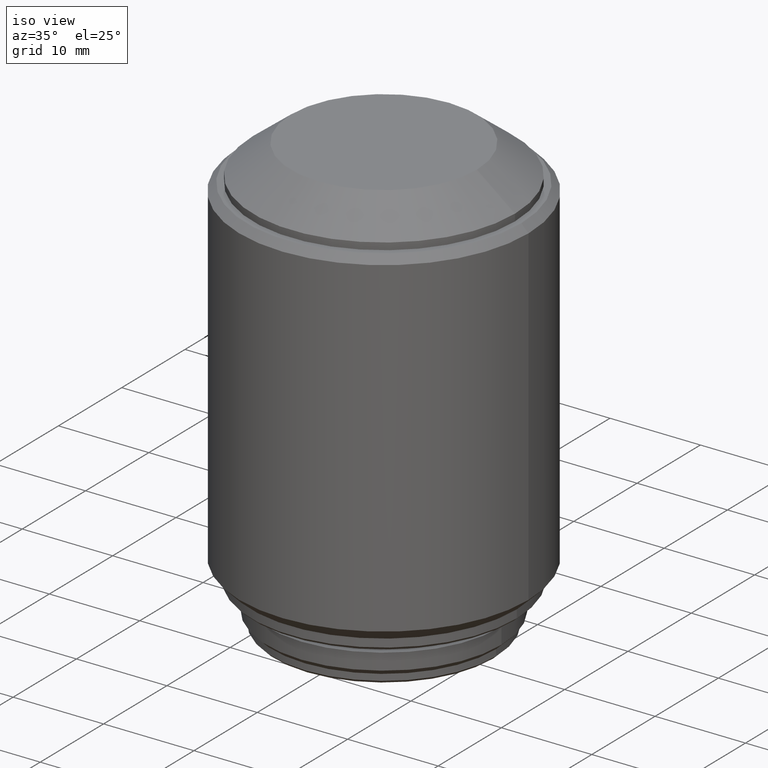
[diagram: clean part render]
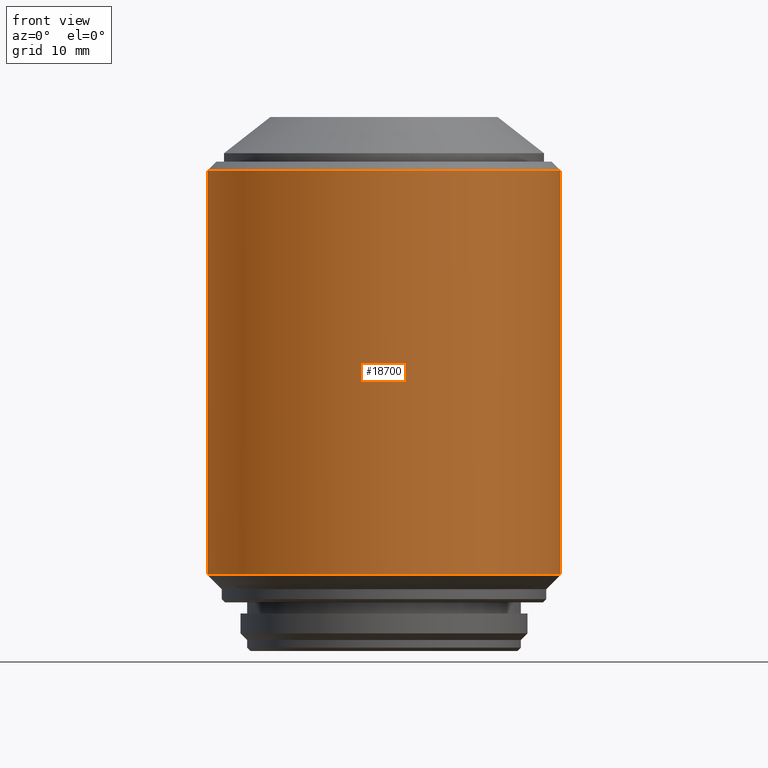
[diagram: tour spotlight — one face highlighted and labeled with its STEP entity id]
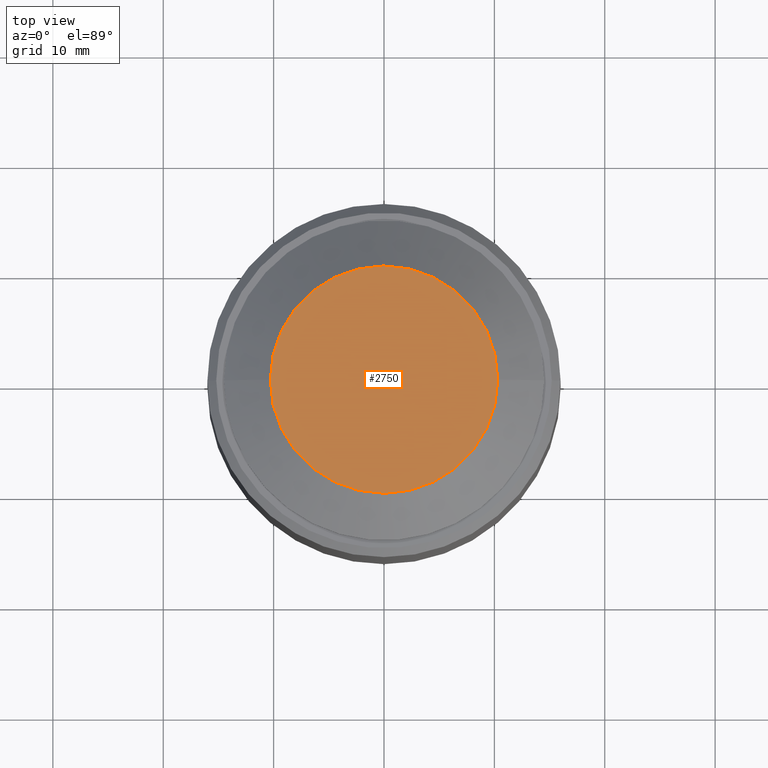
[diagram: tour spotlight — one face highlighted and labeled with its STEP entity id]
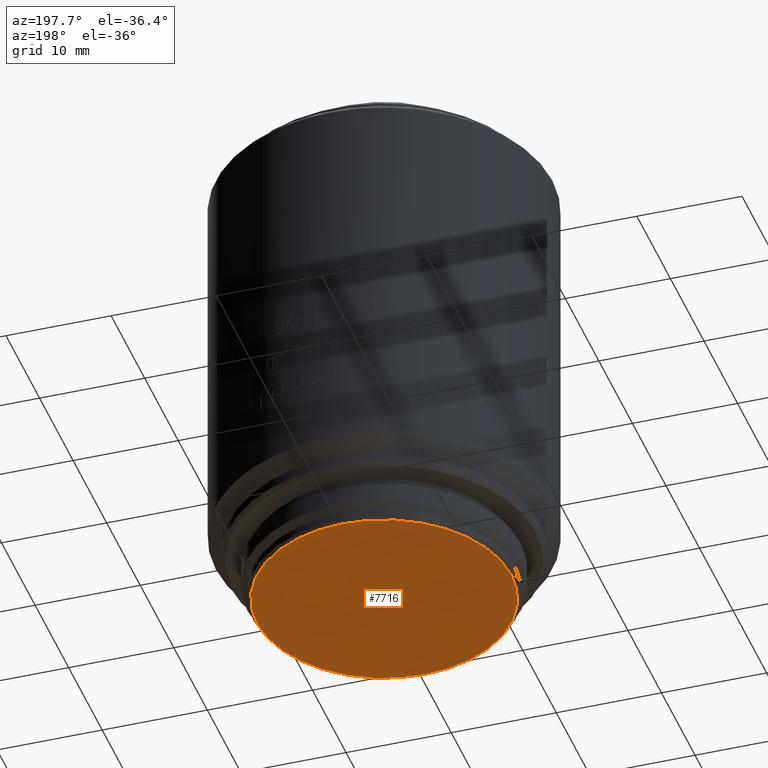
[diagram: tour spotlight — one face highlighted and labeled with its STEP entity id]
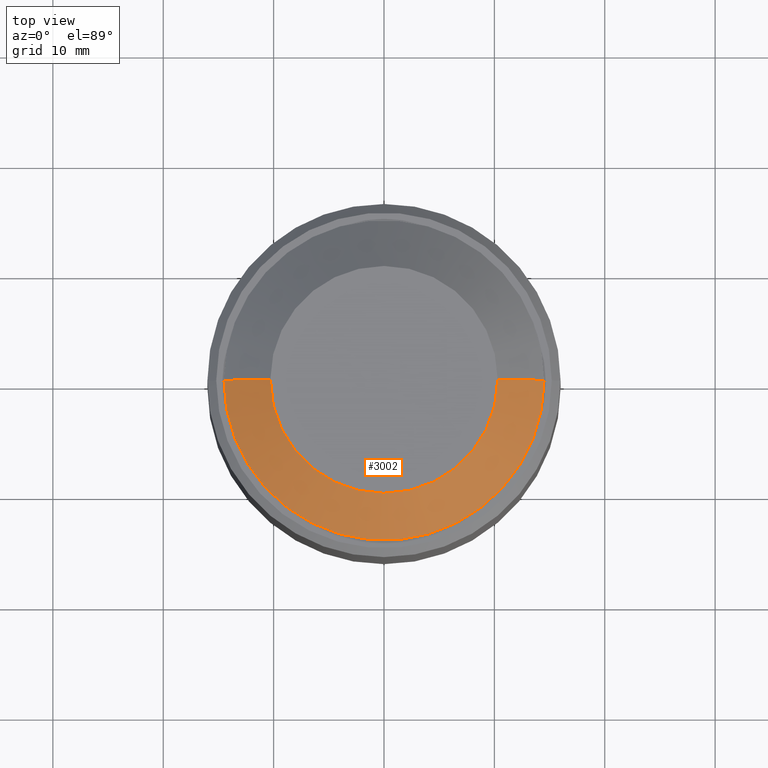
[diagram: tour spotlight — one face highlighted and labeled with its STEP entity id]
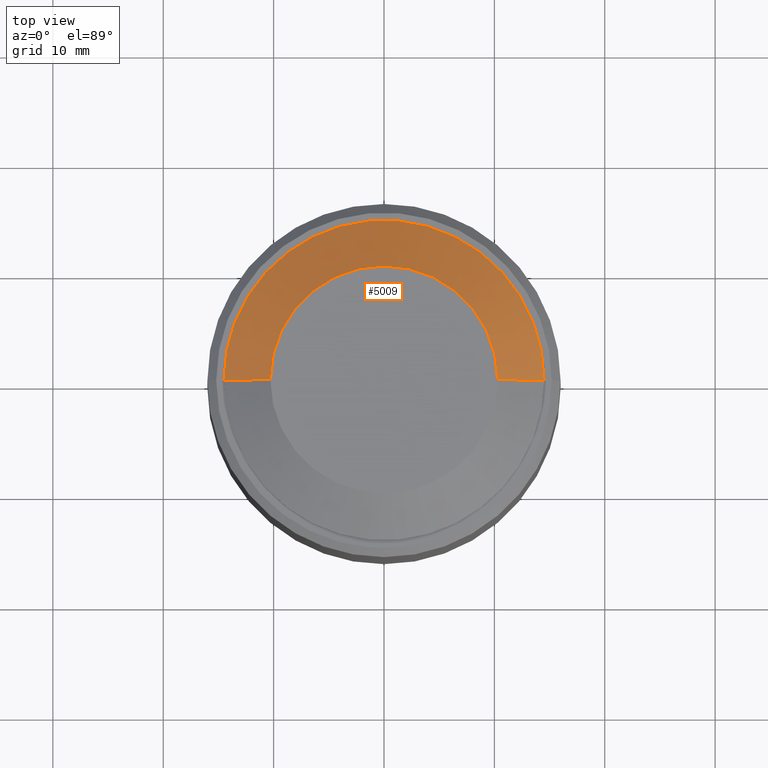
[diagram: tour spotlight — one face highlighted and labeled with its STEP entity id]
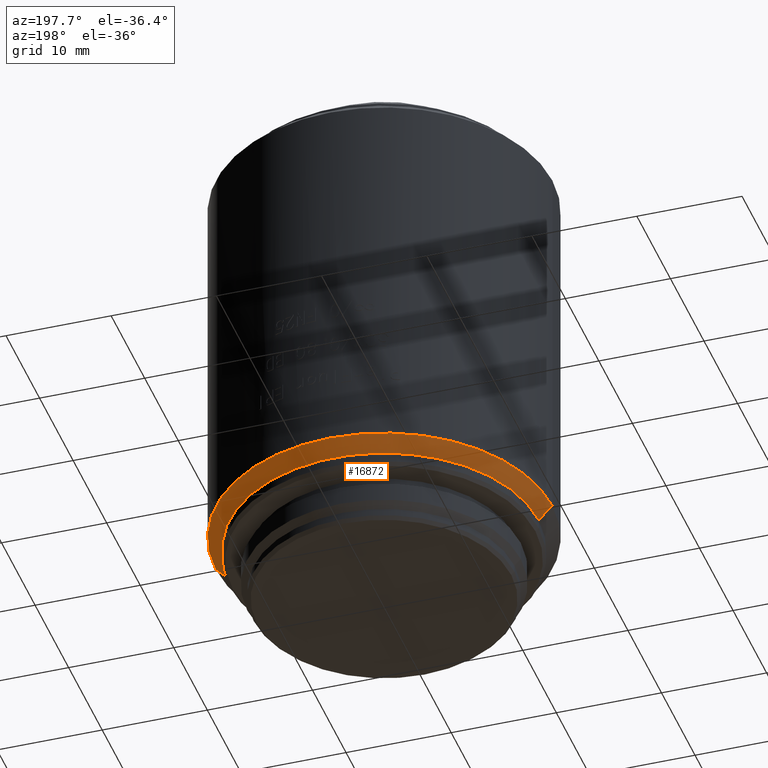
[diagram: tour spotlight — one face highlighted and labeled with its STEP entity id]
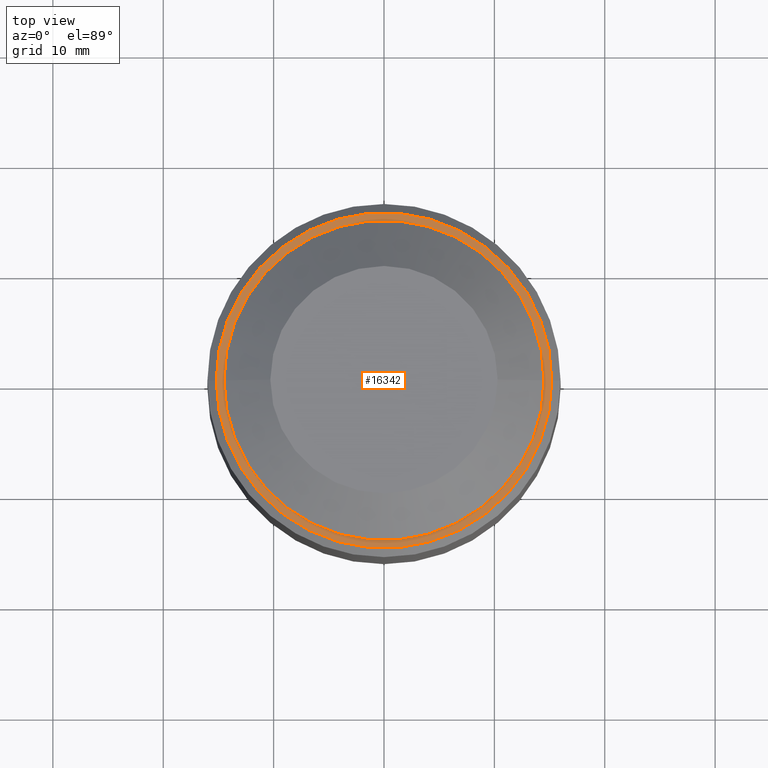
[diagram: tour spotlight — one face highlighted and labeled with its STEP entity id]
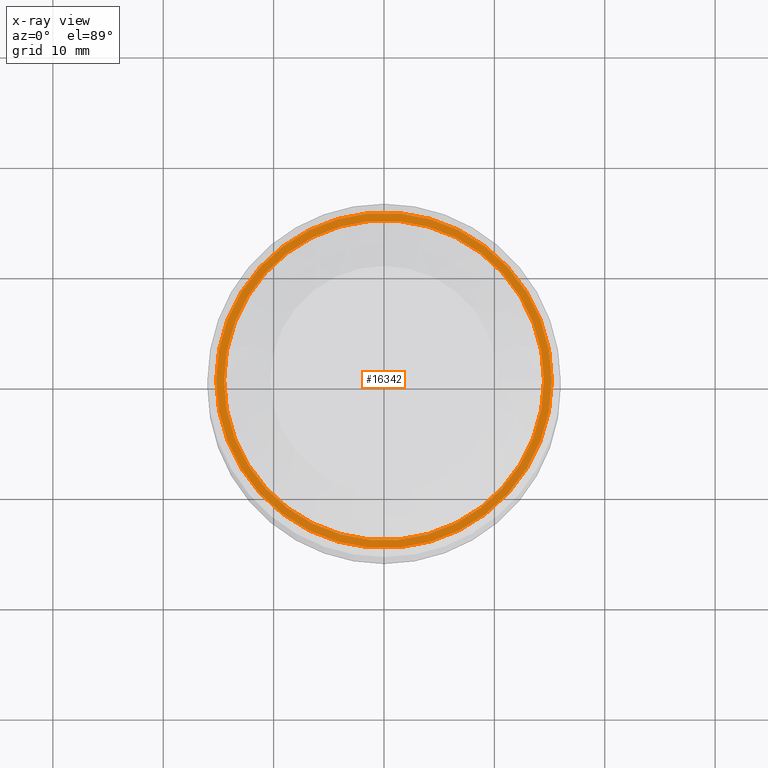
[diagram: x-ray of the same camera — body ghosted, this tour face saturated]
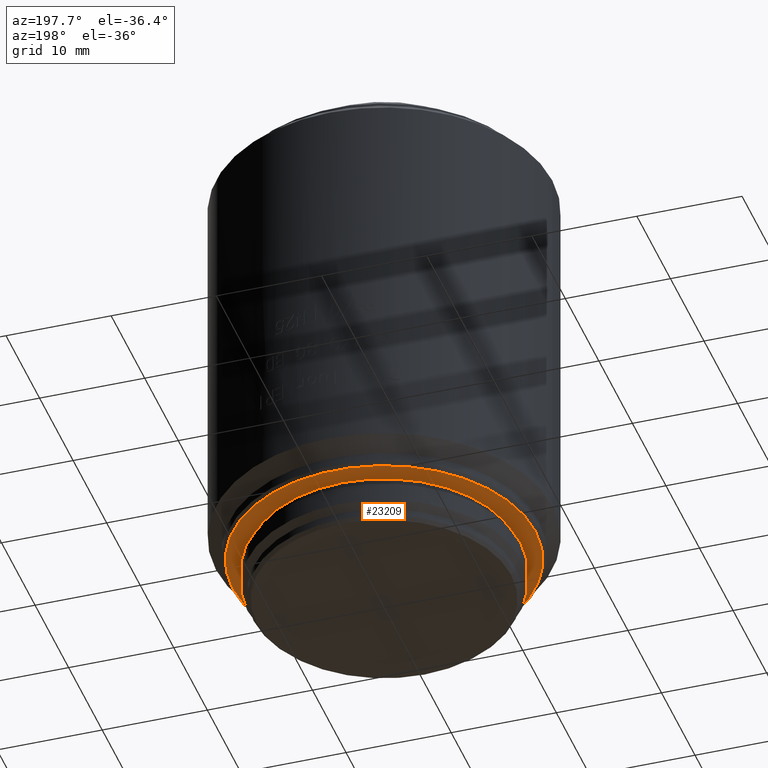
[diagram: tour spotlight — one face highlighted and labeled with its STEP entity id]
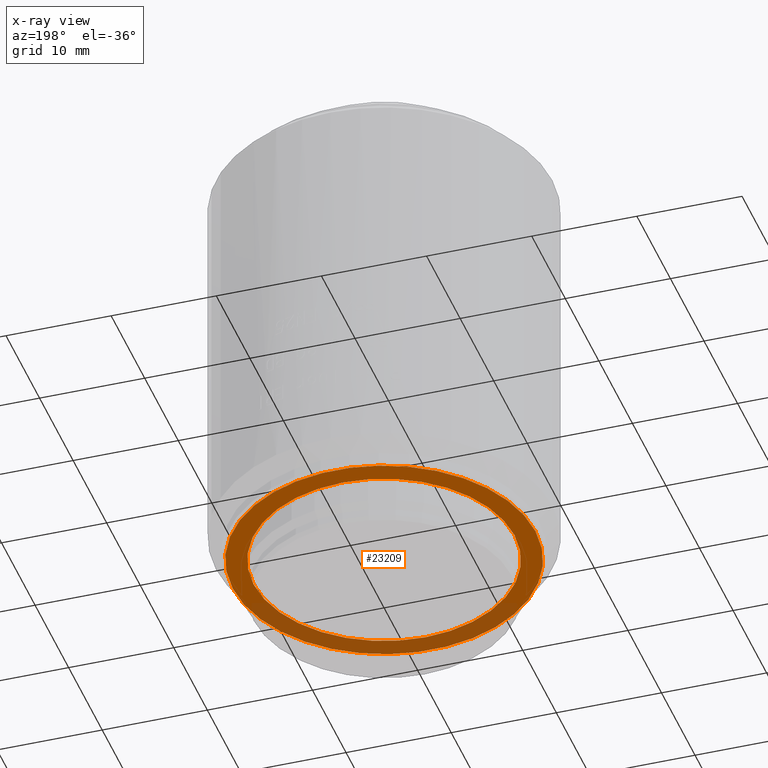
[diagram: x-ray of the same camera — body ghosted, this tour face saturated]
A machine part: a face-by-face anatomy tour. The part has 338 B-rep faces; the first image is the clean iso view, then the 8 largest visible faces are spotlighted one at a time (largest first), each with its STEP entity span.

Face 1 — front view, entity #18700. In plain terms, the highlighted cylindrical surface (partial cylindrical patch) has radius 16 mm, axis along (0, 0, -1).
Definition (entity closure, byte-faithful):
#1824 = DIRECTION ( 'NONE',  ( -1.000000000000000000, 0.000000000000000000, 0.000000000000000000 ) ) ;
#3252 = ORIENTED_EDGE ( 'NONE', *, *, #16903, .T. ) ;
#3361 = LINE ( 'NONE', #27268, #8915 ) ;
#3672 = CARTESIAN_POINT ( 'NONE',  ( 15.99999999999998934, 0.000000000000000000, 6.899999999999999467 ) ) ;
#5108 = CARTESIAN_POINT ( 'NONE',  ( -15.99999999999998579, 0.000000000000000000, 43.53300000000000125 ) ) ;
#5195 = EDGE_CURVE ( 'NONE', #19656, #13818, #11776, .T. ) ;
#5791 = CIRCLE ( 'NONE', #21033, 16.00000000000000000 ) ;
#6987 = DIRECTION ( 'NONE',  ( -1.000000000000000000, 0.000000000000000000, 0.000000000000000000 ) ) ;
#7368 = VERTEX_POINT ( 'NONE', #3672 ) ;
#7916 = EDGE_CURVE ( 'NONE', #13818, #27066, #15582, .T. ) ;
#8915 = VECTOR ( 'NONE', #27120, 1000.000000000000000 ) ;
#11164 = EDGE_LOOP ( 'NONE', ( #22259, #14129, #21833, #3252 ) ) ;
#11776 = CIRCLE ( 'NONE', #26602, 16.00000000000000000 ) ;
#12979 = DIRECTION ( 'NONE',  ( 1.000000000000000000, 0.000000000000000000, 0.000000000000000000 ) ) ;
#13111 = CARTESIAN_POINT ( 'NONE',  ( 0.000000000000000000, 0.000000000000000000, 43.53300000000000125 ) ) ;
#13815 = CARTESIAN_POINT ( 'NONE',  ( 15.99999999999998579, 1.959434878635763554E-15, 43.53300000000000125 ) ) ;
#13818 = VERTEX_POINT ( 'NONE', #5108 ) ;
#14129 = ORIENTED_EDGE ( 'NONE', *, *, #5195, .T. ) ;
#14953 = DIRECTION ( 'NONE',  ( 0.000000000000000000, 0.000000000000000000, -1.000000000000000000 ) ) ;
#15522 = CARTESIAN_POINT ( 'NONE',  ( 0.000000000000000000, 0.000000000000000000, 6.899999999999999467 ) ) ;
#15582 = LINE ( 'NONE', #24431, #26391 ) ;
#16255 = CARTESIAN_POINT ( 'NONE',  ( -15.99999999999998934, 1.959434878635763948E-15, 6.899999999999999467 ) ) ;
#16564 = AXIS2_PLACEMENT_3D ( 'NONE', #18197, #20445, #6987 ) ;
#16903 = EDGE_CURVE ( 'NONE', #27066, #7368, #5791, .T. ) ;
#17793 = CYLINDRICAL_SURFACE ( 'NONE', #16564, 16.00000000000000000 ) ;
#17841 = EDGE_CURVE ( 'NONE', #19656, #7368, #3361, .T. ) ;
#18197 = CARTESIAN_POINT ( 'NONE',  ( 0.000000000000000000, 0.000000000000000000, 48.37899999999999778 ) ) ;
#18700 = ADVANCED_FACE ( 'NONE', ( #26247 ), #17793, .T. ) ;
#19656 = VERTEX_POINT ( 'NONE', #13815 ) ;
#20445 = DIRECTION ( 'NONE',  ( 0.000000000000000000, 0.000000000000000000, -1.000000000000000000 ) ) ;
#21033 = AXIS2_PLACEMENT_3D ( 'NONE', #15522, #27823, #1824 ) ;
#21833 = ORIENTED_EDGE ( 'NONE', *, *, #7916, .T. ) ;
#22259 = ORIENTED_EDGE ( 'NONE', *, *, #17841, .F. ) ;
#24158 = DIRECTION ( 'NONE',  ( 0.000000000000000000, 0.000000000000000000, -1.000000000000000000 ) ) ;
#24431 = CARTESIAN_POINT ( 'NONE',  ( -16.00000000000000000, 0.000000000000000000, 48.37899999999999778 ) ) ;
#26247 = FACE_OUTER_BOUND ( 'NONE', #11164, .T. ) ;
#26391 = VECTOR ( 'NONE', #24158, 1000.000000000000000 ) ;
#26602 = AXIS2_PLACEMENT_3D ( 'NONE', #13111, #14953, #12979 ) ;
#27066 = VERTEX_POINT ( 'NONE', #16255 ) ;
#27120 = DIRECTION ( 'NONE',  ( 0.000000000000000000, 0.000000000000000000, -1.000000000000000000 ) ) ;
#27268 = CARTESIAN_POINT ( 'NONE',  ( 16.00000000000000000, 1.959434878635765131E-15, 48.37899999999999778 ) ) ;
#27823 = DIRECTION ( 'NONE',  ( 0.000000000000000000, 0.000000000000000000, 1.000000000000000000 ) ) ;

Face 2 — top view, entity #2750. In plain terms, the highlighted planar face has unit normal (0, 0, 1).
Definition (entity closure, byte-faithful):
#2185 = AXIS2_PLACEMENT_3D ( 'NONE', #20093, #22469, #20639 ) ;
#2637 = VERTEX_POINT ( 'NONE', #21242 ) ;
#2750 = ADVANCED_FACE ( 'NONE', ( #2964 ), #24179, .T. ) ;
#2964 = FACE_OUTER_BOUND ( 'NONE', #24156, .T. ) ;
#3698 = AXIS2_PLACEMENT_3D ( 'NONE', #23453, #11314, #4222 ) ;
#4222 = DIRECTION ( 'NONE',  ( 1.000000000000000000, 0.000000000000000000, 0.000000000000000000 ) ) ;
#8330 = CARTESIAN_POINT ( 'NONE',  ( 0.000000000000000000, 0.000000000000000000, 48.37899999999999778 ) ) ;
#10864 = CIRCLE ( 'NONE', #3698, 10.30000000000000071 ) ;
#11314 = DIRECTION ( 'NONE',  ( 0.000000000000000000, 0.000000000000000000, 1.000000000000000000 ) ) ;
#11732 = ORIENTED_EDGE ( 'NONE', *, *, #23756, .T. ) ;
#13396 = EDGE_CURVE ( 'NONE', #2637, #15045, #10864, .T. ) ;
#13582 = AXIS2_PLACEMENT_3D ( 'NONE', #8330, #21511, #16892 ) ;
#15045 = VERTEX_POINT ( 'NONE', #16010 ) ;
#16010 = CARTESIAN_POINT ( 'NONE',  ( 10.30000000000000071, 1.518562030942717967E-15, 48.37899999999999778 ) ) ;
#16685 = ORIENTED_EDGE ( 'NONE', *, *, #13396, .T. ) ;
#16892 = DIRECTION ( 'NONE',  ( 1.000000000000000000, 0.000000000000000000, 0.000000000000000000 ) ) ;
#20093 = CARTESIAN_POINT ( 'NONE',  ( 0.000000000000000000, 0.000000000000000000, 48.37899999999999778 ) ) ;
#20639 = DIRECTION ( 'NONE',  ( 1.000000000000000000, 0.000000000000000000, 0.000000000000000000 ) ) ;
#21242 = CARTESIAN_POINT ( 'NONE',  ( -10.30000000000000071, 0.000000000000000000, 48.37899999999999778 ) ) ;
#21511 = DIRECTION ( 'NONE',  ( 0.000000000000000000, 0.000000000000000000, 1.000000000000000000 ) ) ;
#22469 = DIRECTION ( 'NONE',  ( 0.000000000000000000, 0.000000000000000000, 1.000000000000000000 ) ) ;
#23453 = CARTESIAN_POINT ( 'NONE',  ( 0.000000000000000000, 0.000000000000000000, 48.37899999999999778 ) ) ;
#23460 = CIRCLE ( 'NONE', #13582, 10.30000000000000071 ) ;
#23756 = EDGE_CURVE ( 'NONE', #15045, #2637, #23460, .T. ) ;
#24156 = EDGE_LOOP ( 'NONE', ( #16685, #11732 ) ) ;
#24179 = PLANE ( 'NONE',  #2185 ) ;

Face 3 — auxiliary view, entity #7716. In plain terms, the highlighted planar face has unit normal (0, 0, 1).
Definition (entity closure, byte-faithful):
#411 = FACE_OUTER_BOUND ( 'NONE', #6683, .T. ) ;
#822 = CIRCLE ( 'NONE', #5769, 12.09999999999999964 ) ;
#998 = ORIENTED_EDGE ( 'NONE', *, *, #3126, .T. ) ;
#1782 = DIRECTION ( 'NONE',  ( 1.000000000000000000, 0.000000000000000000, 0.000000000000000000 ) ) ;
#1785 = VERTEX_POINT ( 'NONE', #27340 ) ;
#3126 = EDGE_CURVE ( 'NONE', #6643, #1785, #822, .T. ) ;
#5769 = AXIS2_PLACEMENT_3D ( 'NONE', #25837, #23702, #11051 ) ;
#6643 = VERTEX_POINT ( 'NONE', #27460 ) ;
#6683 = EDGE_LOOP ( 'NONE', ( #998, #21627 ) ) ;
#7716 = ADVANCED_FACE ( 'NONE', ( #411 ), #8849, .F. ) ;
#8103 = DIRECTION ( 'NONE',  ( 0.000000000000000000, 0.000000000000000000, -1.000000000000000000 ) ) ;
#8849 = PLANE ( 'NONE',  #15833 ) ;
#8984 = DIRECTION ( 'NONE',  ( 1.000000000000000000, 0.000000000000000000, 0.000000000000000000 ) ) ;
#11051 = DIRECTION ( 'NONE',  ( 1.000000000000000000, 0.000000000000000000, 0.000000000000000000 ) ) ;
#14556 = CARTESIAN_POINT ( 'NONE',  ( 0.000000000000000000, 0.000000000000000000, 0.000000000000000000 ) ) ;
#15833 = AXIS2_PLACEMENT_3D ( 'NONE', #17416, #26007, #8984 ) ;
#16312 = EDGE_CURVE ( 'NONE', #1785, #6643, #16365, .T. ) ;
#16365 = CIRCLE ( 'NONE', #24899, 12.09999999999999964 ) ;
#17416 = CARTESIAN_POINT ( 'NONE',  ( 0.000000000000000000, 0.000000000000000000, 0.000000000000000000 ) ) ;
#21627 = ORIENTED_EDGE ( 'NONE', *, *, #16312, .T. ) ;
#23702 = DIRECTION ( 'NONE',  ( 0.000000000000000000, 0.000000000000000000, -1.000000000000000000 ) ) ;
#24899 = AXIS2_PLACEMENT_3D ( 'NONE', #14556, #8103, #1782 ) ;
#25837 = CARTESIAN_POINT ( 'NONE',  ( 0.000000000000000000, 0.000000000000000000, 0.000000000000000000 ) ) ;
#26007 = DIRECTION ( 'NONE',  ( 0.000000000000000000, 0.000000000000000000, 1.000000000000000000 ) ) ;
#27340 = CARTESIAN_POINT ( 'NONE',  ( -12.09999999999999964, 1.500192328955507537E-15, 0.000000000000000000 ) ) ;
#27460 = CARTESIAN_POINT ( 'NONE',  ( 12.09999999999999964, 0.000000000000000000, 0.000000000000000000 ) ) ;

Face 4 — top view, entity #3002. In plain terms, the highlighted conical surface has half-angle 52.003 deg.
Definition (entity closure, byte-faithful):
#896 = ORIENTED_EDGE ( 'NONE', *, *, #6866, .F. ) ;
#941 = DIRECTION ( 'NONE',  ( 0.000000000000000000, 0.000000000000000000, -1.000000000000000000 ) ) ;
#1573 = EDGE_CURVE ( 'NONE', #21441, #2901, #9675, .T. ) ;
#1978 = DIRECTION ( 'NONE',  ( -1.000000000000000000, 0.000000000000000000, 0.000000000000000000 ) ) ;
#2637 = VERTEX_POINT ( 'NONE', #21242 ) ;
#2772 = ORIENTED_EDGE ( 'NONE', *, *, #13396, .F. ) ;
#2831 = DIRECTION ( 'NONE',  ( -0.7880471300411511226, 0.000000000000000000, -0.6156149127773830054 ) ) ;
#2901 = VERTEX_POINT ( 'NONE', #5473 ) ;
#3002 = ADVANCED_FACE ( 'NONE', ( #8300 ), #16987, .T. ) ;
#3698 = AXIS2_PLACEMENT_3D ( 'NONE', #23453, #11314, #4222 ) ;
#3947 = DIRECTION ( 'NONE',  ( 0.000000000000000000, 0.000000000000000000, -1.000000000000000000 ) ) ;
#4222 = DIRECTION ( 'NONE',  ( 1.000000000000000000, 0.000000000000000000, 0.000000000000000000 ) ) ;
#4957 = ORIENTED_EDGE ( 'NONE', *, *, #9843, .T. ) ;
#5473 = CARTESIAN_POINT ( 'NONE',  ( -14.50000000000001066, 0.000000000000000000, 45.09799999999999898 ) ) ;
#6130 = CARTESIAN_POINT ( 'NONE',  ( 14.50000000000001066, 1.775737858763663593E-15, 45.09799999999999898 ) ) ;
#6866 = EDGE_CURVE ( 'NONE', #15045, #21441, #20718, .T. ) ;
#7664 = CARTESIAN_POINT ( 'NONE',  ( 10.30000000000000071, 1.261386203121773722E-15, 48.37899999999999778 ) ) ;
#8300 = FACE_OUTER_BOUND ( 'NONE', #14280, .T. ) ;
#8520 = ORIENTED_EDGE ( 'NONE', *, *, #1573, .F. ) ;
#9675 = CIRCLE ( 'NONE', #17306, 14.50000000000000000 ) ;
#9746 = VECTOR ( 'NONE', #2831, 1000.000000000000114 ) ;
#9843 = EDGE_CURVE ( 'NONE', #2637, #2901, #22071, .T. ) ;
#10864 = CIRCLE ( 'NONE', #3698, 10.30000000000000071 ) ;
#11314 = DIRECTION ( 'NONE',  ( 0.000000000000000000, 0.000000000000000000, 1.000000000000000000 ) ) ;
#11529 = CARTESIAN_POINT ( 'NONE',  ( -10.30000000000000071, 0.000000000000000000, 48.37899999999999778 ) ) ;
#11736 = DIRECTION ( 'NONE',  ( 0.7880471300411511226, 9.650793953821537366E-17, -0.6156149127773830054 ) ) ;
#13396 = EDGE_CURVE ( 'NONE', #2637, #15045, #10864, .T. ) ;
#13592 = DIRECTION ( 'NONE',  ( 1.000000000000000000, 0.000000000000000000, 0.000000000000000000 ) ) ;
#14280 = EDGE_LOOP ( 'NONE', ( #896, #2772, #4957, #8520 ) ) ;
#15045 = VERTEX_POINT ( 'NONE', #16010 ) ;
#16010 = CARTESIAN_POINT ( 'NONE',  ( 10.30000000000000071, 1.518562030942717967E-15, 48.37899999999999778 ) ) ;
#16723 = CARTESIAN_POINT ( 'NONE',  ( 0.000000000000000000, 0.000000000000000000, 48.37899999999999778 ) ) ;
#16987 = CONICAL_SURFACE ( 'NONE', #24596, 10.30000000000000071, 0.9076302983951296532 ) ;
#17306 = AXIS2_PLACEMENT_3D ( 'NONE', #24139, #941, #13592 ) ;
#20718 = LINE ( 'NONE', #7664, #23926 ) ;
#21242 = CARTESIAN_POINT ( 'NONE',  ( -10.30000000000000071, 0.000000000000000000, 48.37899999999999778 ) ) ;
#21441 = VERTEX_POINT ( 'NONE', #6130 ) ;
#22071 = LINE ( 'NONE', #11529, #9746 ) ;
#23453 = CARTESIAN_POINT ( 'NONE',  ( 0.000000000000000000, 0.000000000000000000, 48.37899999999999778 ) ) ;
#23926 = VECTOR ( 'NONE', #11736, 1000.000000000000114 ) ;
#24139 = CARTESIAN_POINT ( 'NONE',  ( 0.000000000000000000, 0.000000000000000000, 45.09799999999999898 ) ) ;
#24596 = AXIS2_PLACEMENT_3D ( 'NONE', #16723, #3947, #1978 ) ;

Face 5 — top view, entity #5009. In plain terms, the highlighted conical surface has half-angle 52.003 deg.
Definition (entity closure, byte-faithful):
#2637 = VERTEX_POINT ( 'NONE', #21242 ) ;
#2831 = DIRECTION ( 'NONE',  ( -0.7880471300411511226, 0.000000000000000000, -0.6156149127773830054 ) ) ;
#2892 = FACE_OUTER_BOUND ( 'NONE', #10514, .T. ) ;
#2901 = VERTEX_POINT ( 'NONE', #5473 ) ;
#3028 = CARTESIAN_POINT ( 'NONE',  ( 0.000000000000000000, 0.000000000000000000, 48.37899999999999778 ) ) ;
#5009 = ADVANCED_FACE ( 'NONE', ( #2892 ), #6428, .T. ) ;
#5473 = CARTESIAN_POINT ( 'NONE',  ( -14.50000000000001066, 0.000000000000000000, 45.09799999999999898 ) ) ;
#6130 = CARTESIAN_POINT ( 'NONE',  ( 14.50000000000001066, 1.775737858763663593E-15, 45.09799999999999898 ) ) ;
#6428 = CONICAL_SURFACE ( 'NONE', #17619, 10.30000000000000071, 0.9076302983951296532 ) ;
#6866 = EDGE_CURVE ( 'NONE', #15045, #21441, #20718, .T. ) ;
#7664 = CARTESIAN_POINT ( 'NONE',  ( 10.30000000000000071, 1.261386203121773722E-15, 48.37899999999999778 ) ) ;
#7794 = DIRECTION ( 'NONE',  ( 1.000000000000000000, 0.000000000000000000, 0.000000000000000000 ) ) ;
#8330 = CARTESIAN_POINT ( 'NONE',  ( 0.000000000000000000, 0.000000000000000000, 48.37899999999999778 ) ) ;
#9746 = VECTOR ( 'NONE', #2831, 1000.000000000000114 ) ;
#9843 = EDGE_CURVE ( 'NONE', #2637, #2901, #22071, .T. ) ;
#9892 = DIRECTION ( 'NONE',  ( -1.000000000000000000, 0.000000000000000000, 0.000000000000000000 ) ) ;
#10514 = EDGE_LOOP ( 'NONE', ( #26693, #27385, #14670, #18633 ) ) ;
#11529 = CARTESIAN_POINT ( 'NONE',  ( -10.30000000000000071, 0.000000000000000000, 48.37899999999999778 ) ) ;
#11736 = DIRECTION ( 'NONE',  ( 0.7880471300411511226, 9.650793953821537366E-17, -0.6156149127773830054 ) ) ;
#13140 = CIRCLE ( 'NONE', #18506, 14.50000000000000000 ) ;
#13582 = AXIS2_PLACEMENT_3D ( 'NONE', #8330, #21511, #16892 ) ;
#13829 = CARTESIAN_POINT ( 'NONE',  ( 0.000000000000000000, 0.000000000000000000, 45.09799999999999898 ) ) ;
#14670 = ORIENTED_EDGE ( 'NONE', *, *, #25252, .F. ) ;
#15045 = VERTEX_POINT ( 'NONE', #16010 ) ;
#16010 = CARTESIAN_POINT ( 'NONE',  ( 10.30000000000000071, 1.518562030942717967E-15, 48.37899999999999778 ) ) ;
#16892 = DIRECTION ( 'NONE',  ( 1.000000000000000000, 0.000000000000000000, 0.000000000000000000 ) ) ;
#17619 = AXIS2_PLACEMENT_3D ( 'NONE', #3028, #17916, #9892 ) ;
#17916 = DIRECTION ( 'NONE',  ( 0.000000000000000000, 0.000000000000000000, -1.000000000000000000 ) ) ;
#18506 = AXIS2_PLACEMENT_3D ( 'NONE', #13829, #22399, #7794 ) ;
#18633 = ORIENTED_EDGE ( 'NONE', *, *, #9843, .F. ) ;
#20718 = LINE ( 'NONE', #7664, #23926 ) ;
#21242 = CARTESIAN_POINT ( 'NONE',  ( -10.30000000000000071, 0.000000000000000000, 48.37899999999999778 ) ) ;
#21441 = VERTEX_POINT ( 'NONE', #6130 ) ;
#21511 = DIRECTION ( 'NONE',  ( 0.000000000000000000, 0.000000000000000000, 1.000000000000000000 ) ) ;
#22071 = LINE ( 'NONE', #11529, #9746 ) ;
#22399 = DIRECTION ( 'NONE',  ( 0.000000000000000000, 0.000000000000000000, -1.000000000000000000 ) ) ;
#23460 = CIRCLE ( 'NONE', #13582, 10.30000000000000071 ) ;
#23756 = EDGE_CURVE ( 'NONE', #15045, #2637, #23460, .T. ) ;
#23926 = VECTOR ( 'NONE', #11736, 1000.000000000000114 ) ;
#25252 = EDGE_CURVE ( 'NONE', #2901, #21441, #13140, .T. ) ;
#26693 = ORIENTED_EDGE ( 'NONE', *, *, #23756, .F. ) ;
#27385 = ORIENTED_EDGE ( 'NONE', *, *, #6866, .T. ) ;

Face 6 — auxiliary view, entity #16872. In plain terms, the highlighted conical surface has half-angle 45 deg.
Definition (entity closure, byte-faithful):
#726 = EDGE_LOOP ( 'NONE', ( #17218, #5187, #20863, #11408 ) ) ;
#968 = CARTESIAN_POINT ( 'NONE',  ( 0.000000000000000000, 0.000000000000000000, 5.599999999999999645 ) ) ;
#1240 = DIRECTION ( 'NONE',  ( 0.000000000000000000, 0.000000000000000000, -1.000000000000000000 ) ) ;
#2921 = EDGE_CURVE ( 'NONE', #8167, #27066, #5343, .T. ) ;
#3672 = CARTESIAN_POINT ( 'NONE',  ( 15.99999999999998934, 0.000000000000000000, 6.899999999999999467 ) ) ;
#3807 = CARTESIAN_POINT ( 'NONE',  ( -14.69999999999999929, 1.800230794746609123E-15, 5.599999999999999645 ) ) ;
#4484 = AXIS2_PLACEMENT_3D ( 'NONE', #26899, #5954, #10310 ) ;
#5187 = ORIENTED_EDGE ( 'NONE', *, *, #2921, .T. ) ;
#5343 = LINE ( 'NONE', #3807, #11135 ) ;
#5954 = DIRECTION ( 'NONE',  ( 0.000000000000000000, 0.000000000000000000, 1.000000000000000000 ) ) ;
#7276 = CARTESIAN_POINT ( 'NONE',  ( 14.69999999999999929, 0.000000000000000000, 5.599999999999999645 ) ) ;
#7307 = VECTOR ( 'NONE', #24416, 1000.000000000000000 ) ;
#7368 = VERTEX_POINT ( 'NONE', #3672 ) ;
#8167 = VERTEX_POINT ( 'NONE', #8207 ) ;
#8207 = CARTESIAN_POINT ( 'NONE',  ( -14.69999999999999929, 1.879832836691186339E-15, 5.599999999999999645 ) ) ;
#10310 = DIRECTION ( 'NONE',  ( -1.000000000000000000, 0.000000000000000000, 0.000000000000000000 ) ) ;
#11135 = VECTOR ( 'NONE', #20925, 1000.000000000000000 ) ;
#11408 = ORIENTED_EDGE ( 'NONE', *, *, #24719, .F. ) ;
#11632 = CIRCLE ( 'NONE', #4484, 16.00000000000000000 ) ;
#12508 = AXIS2_PLACEMENT_3D ( 'NONE', #22877, #20351, #16272 ) ;
#14634 = VERTEX_POINT ( 'NONE', #25760 ) ;
#15701 = LINE ( 'NONE', #7276, #7307 ) ;
#16255 = CARTESIAN_POINT ( 'NONE',  ( -15.99999999999998934, 1.959434878635763948E-15, 6.899999999999999467 ) ) ;
#16272 = DIRECTION ( 'NONE',  ( 1.000000000000000000, 0.000000000000000000, 0.000000000000000000 ) ) ;
#16872 = ADVANCED_FACE ( 'NONE', ( #18378 ), #19679, .T. ) ;
#17218 = ORIENTED_EDGE ( 'NONE', *, *, #23207, .F. ) ;
#18378 = FACE_OUTER_BOUND ( 'NONE', #726, .T. ) ;
#18380 = DIRECTION ( 'NONE',  ( -1.000000000000000000, 0.000000000000000000, 0.000000000000000000 ) ) ;
#19679 = CONICAL_SURFACE ( 'NONE', #12508, 14.69999999999999929, 0.7853981633974447263 ) ;
#19909 = EDGE_CURVE ( 'NONE', #7368, #27066, #11632, .T. ) ;
#20351 = DIRECTION ( 'NONE',  ( 0.000000000000000000, 0.000000000000000000, 1.000000000000000000 ) ) ;
#20863 = ORIENTED_EDGE ( 'NONE', *, *, #19909, .F. ) ;
#20925 = DIRECTION ( 'NONE',  ( -0.7071067811865450192, 8.659560562354902043E-17, 0.7071067811865500152 ) ) ;
#21991 = CIRCLE ( 'NONE', #26941, 14.69999999999999929 ) ;
#22877 = CARTESIAN_POINT ( 'NONE',  ( 0.000000000000000000, 0.000000000000000000, 5.599999999999999645 ) ) ;
#23207 = EDGE_CURVE ( 'NONE', #8167, #14634, #21991, .T. ) ;
#24416 = DIRECTION ( 'NONE',  ( 0.7071067811865450192, 0.000000000000000000, 0.7071067811865500152 ) ) ;
#24719 = EDGE_CURVE ( 'NONE', #14634, #7368, #15701, .T. ) ;
#25760 = CARTESIAN_POINT ( 'NONE',  ( 14.69999999999999929, 0.000000000000000000, 5.599999999999999645 ) ) ;
#26899 = CARTESIAN_POINT ( 'NONE',  ( 0.000000000000000000, 0.000000000000000000, 6.899999999999999467 ) ) ;
#26941 = AXIS2_PLACEMENT_3D ( 'NONE', #968, #1240, #18380 ) ;
#27066 = VERTEX_POINT ( 'NONE', #16255 ) ;

Face 7 — top view, entity #16342. An x-ray twin of the same camera follows (body ghosted, this face saturated) — the face is partly hidden behind the body. In plain terms, the highlighted planar face has unit normal (0, 0, 1).
Definition (entity closure, byte-faithful):
#1635 = DIRECTION ( 'NONE',  ( 0.000000000000000000, 0.000000000000000000, 1.000000000000000000 ) ) ;
#2293 = VERTEX_POINT ( 'NONE', #12176 ) ;
#2609 = CARTESIAN_POINT ( 'NONE',  ( 0.000000000000000000, 0.000000000000000000, 44.33299999999999841 ) ) ;
#2652 = DIRECTION ( 'NONE',  ( 0.000000000000000000, 0.000000000000000000, 1.000000000000000000 ) ) ;
#2707 = ORIENTED_EDGE ( 'NONE', *, *, #4513, .F. ) ;
#3484 = AXIS2_PLACEMENT_3D ( 'NONE', #7922, #7502, #8989 ) ;
#3752 = CARTESIAN_POINT ( 'NONE',  ( 0.000000000000000000, 0.000000000000000000, 44.33299999999999841 ) ) ;
#4245 = ORIENTED_EDGE ( 'NONE', *, *, #7035, .F. ) ;
#4513 = EDGE_CURVE ( 'NONE', #20384, #9724, #4671, .T. ) ;
#4671 = CIRCLE ( 'NONE', #20348, 14.50000000000000000 ) ;
#4676 = CARTESIAN_POINT ( 'NONE',  ( 14.50000000000000000, 0.000000000000000000, 44.33299999999999841 ) ) ;
#7035 = EDGE_CURVE ( 'NONE', #9724, #20384, #7311, .T. ) ;
#7311 = CIRCLE ( 'NONE', #10901, 14.50000000000000000 ) ;
#7502 = DIRECTION ( 'NONE',  ( 0.000000000000000000, 0.000000000000000000, 1.000000000000000000 ) ) ;
#7922 = CARTESIAN_POINT ( 'NONE',  ( 0.000000000000000000, 0.000000000000000000, 44.33299999999999841 ) ) ;
#8149 = EDGE_CURVE ( 'NONE', #11014, #2293, #20062, .T. ) ;
#8385 = PLANE ( 'NONE',  #21309 ) ;
#8989 = DIRECTION ( 'NONE',  ( 1.000000000000000000, 0.000000000000000000, 0.000000000000000000 ) ) ;
#9293 = DIRECTION ( 'NONE',  ( 1.000000000000000000, 0.000000000000000000, 0.000000000000000000 ) ) ;
#9724 = VERTEX_POINT ( 'NONE', #4676 ) ;
#10483 = FACE_BOUND ( 'NONE', #18352, .T. ) ;
#10901 = AXIS2_PLACEMENT_3D ( 'NONE', #22217, #24882, #9293 ) ;
#11014 = VERTEX_POINT ( 'NONE', #17379 ) ;
#11447 = DIRECTION ( 'NONE',  ( 0.000000000000000000, 0.000000000000000000, 1.000000000000000000 ) ) ;
#12176 = CARTESIAN_POINT ( 'NONE',  ( -15.19999999999999929, 0.000000000000000000, 44.33299999999999841 ) ) ;
#13511 = CARTESIAN_POINT ( 'NONE',  ( -14.50000000000000000, 1.775737858763662015E-15, 44.33299999999999841 ) ) ;
#14098 = EDGE_LOOP ( 'NONE', ( #24408, #18032 ) ) ;
#14283 = EDGE_CURVE ( 'NONE', #2293, #11014, #23543, .T. ) ;
#16342 = ADVANCED_FACE ( 'NONE', ( #10483, #19051 ), #8385, .T. ) ;
#17379 = CARTESIAN_POINT ( 'NONE',  ( 15.19999999999999929, 1.910449006669870126E-15, 44.33299999999999841 ) ) ;
#18032 = ORIENTED_EDGE ( 'NONE', *, *, #8149, .T. ) ;
#18125 = AXIS2_PLACEMENT_3D ( 'NONE', #26127, #2652, #22437 ) ;
#18352 = EDGE_LOOP ( 'NONE', ( #4245, #2707 ) ) ;
#19051 = FACE_OUTER_BOUND ( 'NONE', #14098, .T. ) ;
#20062 = CIRCLE ( 'NONE', #3484, 15.19999999999999929 ) ;
#20348 = AXIS2_PLACEMENT_3D ( 'NONE', #2609, #11447, #24237 ) ;
#20384 = VERTEX_POINT ( 'NONE', #13511 ) ;
#21309 = AXIS2_PLACEMENT_3D ( 'NONE', #3752, #1635, #25538 ) ;
#22217 = CARTESIAN_POINT ( 'NONE',  ( 0.000000000000000000, 0.000000000000000000, 44.33299999999999841 ) ) ;
#22437 = DIRECTION ( 'NONE',  ( 1.000000000000000000, 0.000000000000000000, 0.000000000000000000 ) ) ;
#23543 = CIRCLE ( 'NONE', #18125, 15.19999999999999929 ) ;
#24237 = DIRECTION ( 'NONE',  ( 1.000000000000000000, 0.000000000000000000, 0.000000000000000000 ) ) ;
#24408 = ORIENTED_EDGE ( 'NONE', *, *, #14283, .T. ) ;
#24882 = DIRECTION ( 'NONE',  ( 0.000000000000000000, 0.000000000000000000, 1.000000000000000000 ) ) ;
#25538 = DIRECTION ( 'NONE',  ( 1.000000000000000000, 0.000000000000000000, 0.000000000000000000 ) ) ;
#26127 = CARTESIAN_POINT ( 'NONE',  ( 0.000000000000000000, 0.000000000000000000, 44.33299999999999841 ) ) ;

Face 8 — auxiliary view, entity #23209. An x-ray twin of the same camera follows (body ghosted, this face saturated) — the face is partly hidden behind the body. In plain terms, the highlighted planar face has unit normal (0, 0, -1).
Definition (entity closure, byte-faithful):
#17 = DIRECTION ( 'NONE',  ( 0.000000000000000000, 0.000000000000000000, -1.000000000000000000 ) ) ;
#263 = DIRECTION ( 'NONE',  ( 0.000000000000000000, 0.000000000000000000, -1.000000000000000000 ) ) ;
#1466 = CIRCLE ( 'NONE', #4204, 14.40000000000000036 ) ;
#3222 = AXIS2_PLACEMENT_3D ( 'NONE', #12159, #3600, #20726 ) ;
#3394 = VERTEX_POINT ( 'NONE', #25352 ) ;
#3600 = DIRECTION ( 'NONE',  ( 0.000000000000000000, 0.000000000000000000, -1.000000000000000000 ) ) ;
#4204 = AXIS2_PLACEMENT_3D ( 'NONE', #12704, #22814, #21269 ) ;
#4392 = CARTESIAN_POINT ( 'NONE',  ( 0.000000000000000000, 0.000000000000000000, 4.400000000000000355 ) ) ;
#6878 = DIRECTION ( 'NONE',  ( -1.000000000000000000, 0.000000000000000000, 0.000000000000000000 ) ) ;
#7985 = AXIS2_PLACEMENT_3D ( 'NONE', #15711, #263, #6878 ) ;
#8595 = DIRECTION ( 'NONE',  ( -1.000000000000000000, 0.000000000000000000, 0.000000000000000000 ) ) ;
#9075 = EDGE_LOOP ( 'NONE', ( #27004, #13236 ) ) ;
#9369 = VERTEX_POINT ( 'NONE', #17310 ) ;
#10177 = EDGE_CURVE ( 'NONE', #11461, #3394, #27687, .T. ) ;
#11211 = EDGE_CURVE ( 'NONE', #27144, #9369, #22952, .T. ) ;
#11461 = VERTEX_POINT ( 'NONE', #25758 ) ;
#11727 = ORIENTED_EDGE ( 'NONE', *, *, #25291, .T. ) ;
#11784 = FACE_BOUND ( 'NONE', #9075, .T. ) ;
#12159 = CARTESIAN_POINT ( 'NONE',  ( 0.000000000000000000, 0.000000000000000000, 4.400000000000000355 ) ) ;
#12207 = CIRCLE ( 'NONE', #27026, 12.40000000000000036 ) ;
#12704 = CARTESIAN_POINT ( 'NONE',  ( 0.000000000000000000, 0.000000000000000000, 4.400000000000000355 ) ) ;
#13207 = EDGE_CURVE ( 'NONE', #3394, #11461, #12207, .T. ) ;
#13236 = ORIENTED_EDGE ( 'NONE', *, *, #10177, .F. ) ;
#14715 = EDGE_LOOP ( 'NONE', ( #27284, #11727 ) ) ;
#14818 = AXIS2_PLACEMENT_3D ( 'NONE', #27269, #16137, #22737 ) ;
#15711 = CARTESIAN_POINT ( 'NONE',  ( 0.000000000000000000, 0.000000000000000000, 4.400000000000000355 ) ) ;
#16137 = DIRECTION ( 'NONE',  ( 0.000000000000000000, 0.000000000000000000, -1.000000000000000000 ) ) ;
#17310 = CARTESIAN_POINT ( 'NONE',  ( -14.40000000000000036, 1.781861092759398693E-15, 4.400000000000000355 ) ) ;
#18109 = PLANE ( 'NONE',  #14818 ) ;
#20726 = DIRECTION ( 'NONE',  ( -1.000000000000000000, 0.000000000000000000, 0.000000000000000000 ) ) ;
#21269 = DIRECTION ( 'NONE',  ( -1.000000000000000000, 0.000000000000000000, 0.000000000000000000 ) ) ;
#22737 = DIRECTION ( 'NONE',  ( 0.000000000000000000, -1.000000000000000000, 0.000000000000000000 ) ) ;
#22814 = DIRECTION ( 'NONE',  ( 0.000000000000000000, 0.000000000000000000, -1.000000000000000000 ) ) ;
#22952 = CIRCLE ( 'NONE', #3222, 14.40000000000000036 ) ;
#23153 = CARTESIAN_POINT ( 'NONE',  ( 14.40000000000000036, 0.000000000000000000, 4.400000000000000355 ) ) ;
#23209 = ADVANCED_FACE ( 'NONE', ( #11784, #25003 ), #18109, .T. ) ;
#25003 = FACE_OUTER_BOUND ( 'NONE', #14715, .T. ) ;
#25291 = EDGE_CURVE ( 'NONE', #9369, #27144, #1466, .T. ) ;
#25352 = CARTESIAN_POINT ( 'NONE',  ( 12.40000000000000036, 0.000000000000000000, 4.400000000000000355 ) ) ;
#25758 = CARTESIAN_POINT ( 'NONE',  ( -12.40000000000000036, 1.518562030942717967E-15, 4.400000000000000355 ) ) ;
#27004 = ORIENTED_EDGE ( 'NONE', *, *, #13207, .F. ) ;
#27026 = AXIS2_PLACEMENT_3D ( 'NONE', #4392, #17, #8595 ) ;
#27144 = VERTEX_POINT ( 'NONE', #23153 ) ;
#27269 = CARTESIAN_POINT ( 'NONE',  ( 0.000000000000000000, 0.000000000000000000, 4.400000000000000355 ) ) ;
#27284 = ORIENTED_EDGE ( 'NONE', *, *, #11211, .T. ) ;
#27687 = CIRCLE ( 'NONE', #7985, 12.40000000000000036 ) ;